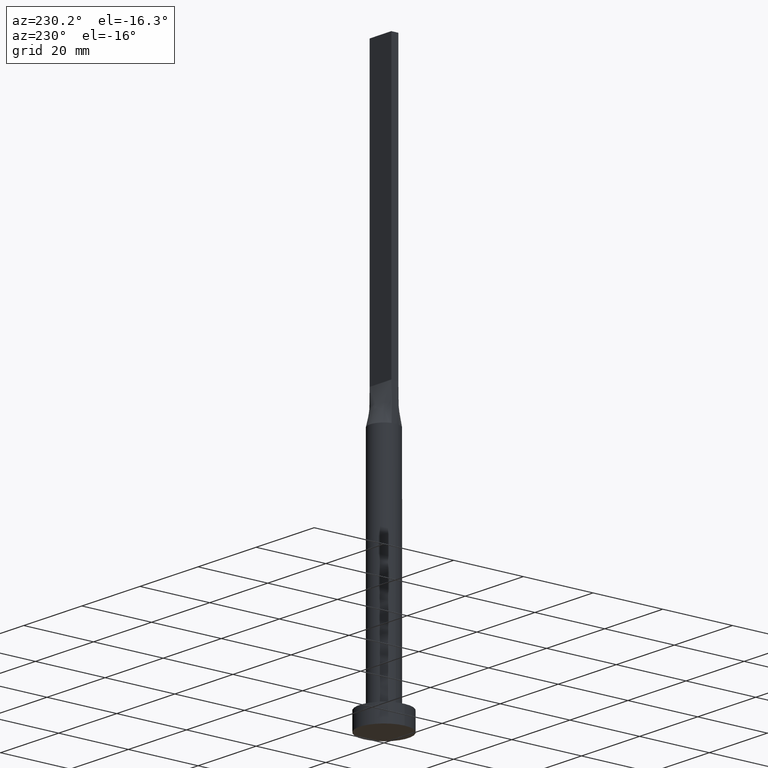
[diagram: clean part render]
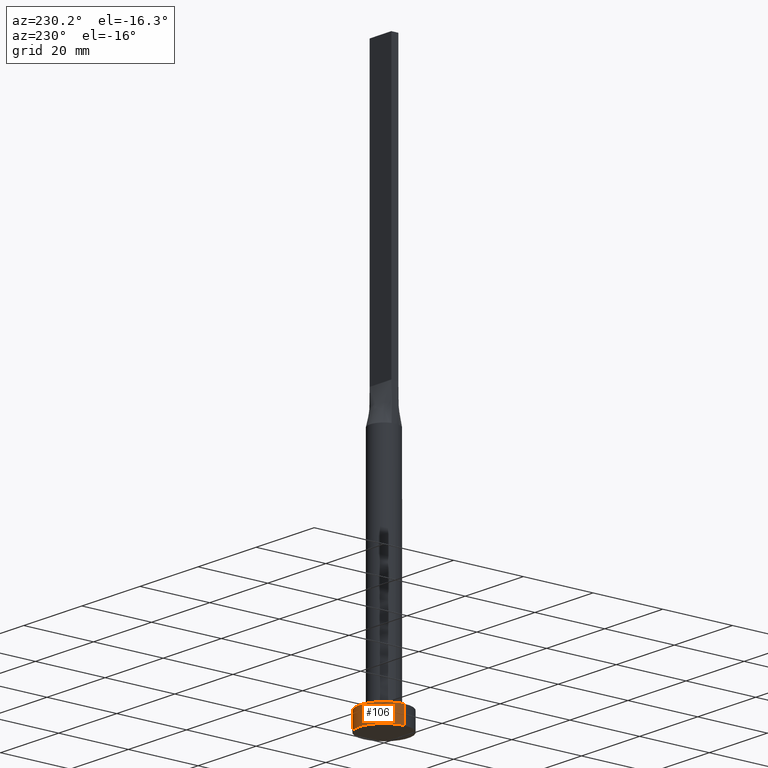
[diagram: same view with one face highlighted and labeled with its STEP entity id]
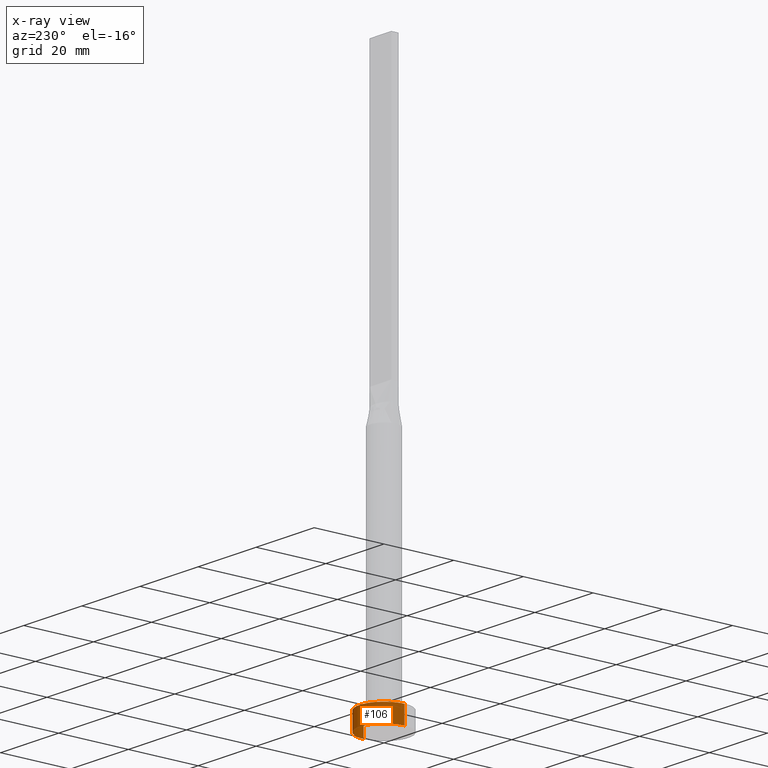
[diagram: x-ray of the same camera — body ghosted, the highlighted face saturated]
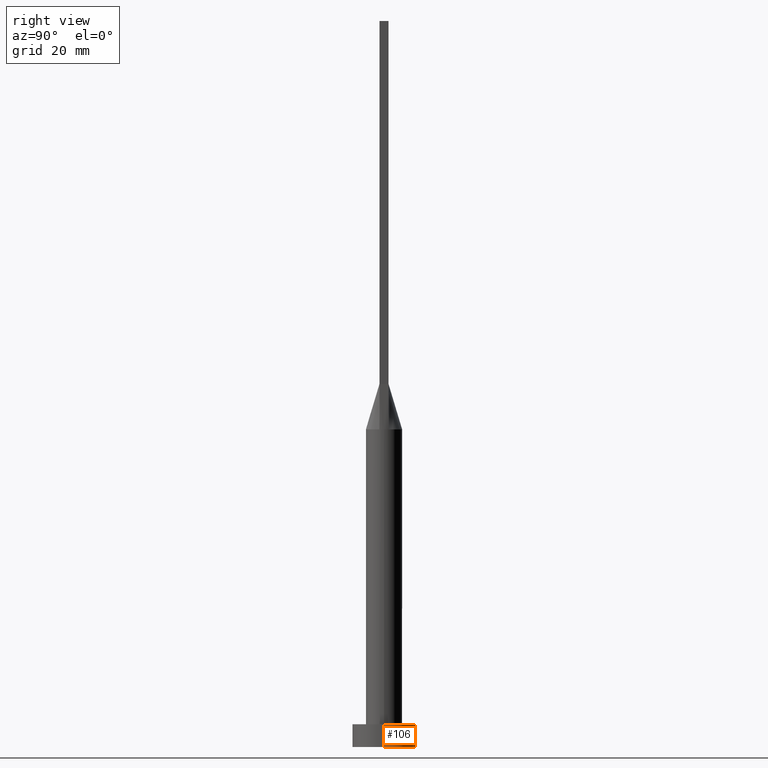
[diagram: same view with one face highlighted and labeled with its STEP entity id]
A machine part, auxiliary view. The second image highlights one B-rep face of the part: STEP entity #106.
The next image is the same camera in x-ray: the body ghosted, the highlighted face saturated — about 0% of this face is hidden behind the body in this view.
A second angle (right view) of the same face is appended — the face is thin or edge-on in the first view.
In plain terms, the highlighted cylindrical surface (edge-blend (fillet) strip) has radius 7 mm, axis along (-0, -0, -1).
Its self-contained STEP definition (entity closure, byte-faithful):
#5 = ORIENTED_EDGE ( 'NONE', *, *, #581, .F. ) ;
#23 = DIRECTION ( 'NONE',  ( 1.000000000000000000, 0.000000000000000000, 0.000000000000000000 ) ) ;
#33 = DIRECTION ( 'NONE',  ( -1.000000000000000000, 0.000000000000000000, 0.000000000000000000 ) ) ;
#59 = DIRECTION ( 'NONE',  ( -0.000000000000000000, -0.000000000000000000, -1.000000000000000000 ) ) ;
#63 = CARTESIAN_POINT ( 'NONE',  ( 0.000000000000000000, 0.000000000000000000, 5.000000000000000000 ) ) ;
#89 = VERTEX_POINT ( 'NONE', #365 ) ;
#94 = VERTEX_POINT ( 'NONE', #195 ) ;
#106 = ADVANCED_FACE ( 'NONE', ( #532 ), #131, .T. ) ;
#110 = DIRECTION ( 'NONE',  ( 0.000000000000000000, 0.000000000000000000, 1.000000000000000000 ) ) ;
#120 = DIRECTION ( 'NONE',  ( -0.000000000000000000, -0.000000000000000000, -1.000000000000000000 ) ) ;
#123 = CARTESIAN_POINT ( 'NONE',  ( 7.000000000000000000, 8.572527594031473190E-16, 0.000000000000000000 ) ) ;
#131 = CYLINDRICAL_SURFACE ( 'NONE', #222, 7.000000000000000000 ) ;
#178 = ORIENTED_EDGE ( 'NONE', *, *, #217, .T. ) ;
#181 = EDGE_CURVE ( 'NONE', #562, #89, #517, .T. ) ;
#184 = CIRCLE ( 'NONE', #518, 7.000000000000000000 ) ;
#191 = VECTOR ( 'NONE', #441, 1000.000000000000000 ) ;
#194 = VECTOR ( 'NONE', #59, 1000.000000000000000 ) ;
#195 = CARTESIAN_POINT ( 'NONE',  ( 7.000000000000000000, 8.572527594031473190E-16, 5.000000000000000000 ) ) ;
#217 = EDGE_CURVE ( 'NONE', #539, #89, #415, .T. ) ;
#222 = AXIS2_PLACEMENT_3D ( 'NONE', #63, #120, #33 ) ;
#281 = DIRECTION ( 'NONE',  ( 1.000000000000000000, 0.000000000000000000, 0.000000000000000000 ) ) ;
#296 = CARTESIAN_POINT ( 'NONE',  ( -7.000000000000000000, 0.000000000000000000, 5.000000000000000000 ) ) ;
#300 = DIRECTION ( 'NONE',  ( 0.000000000000000000, 0.000000000000000000, 1.000000000000000000 ) ) ;
#330 = CARTESIAN_POINT ( 'NONE',  ( 0.000000000000000000, 0.000000000000000000, 0.000000000000000000 ) ) ;
#337 = CARTESIAN_POINT ( 'NONE',  ( 7.000000000000000000, 8.572527594031473190E-16, 5.000000000000000000 ) ) ;
#365 = CARTESIAN_POINT ( 'NONE',  ( -7.000000000000000000, 0.000000000000000000, 0.000000000000000000 ) ) ;
#384 = AXIS2_PLACEMENT_3D ( 'NONE', #330, #110, #281 ) ;
#388 = ORIENTED_EDGE ( 'NONE', *, *, #181, .F. ) ;
#415 = CIRCLE ( 'NONE', #384, 7.000000000000000000 ) ;
#441 = DIRECTION ( 'NONE',  ( -0.000000000000000000, -0.000000000000000000, -1.000000000000000000 ) ) ;
#442 = LINE ( 'NONE', #337, #191 ) ;
#444 = EDGE_LOOP ( 'NONE', ( #5, #574, #178, #388 ) ) ;
#472 = CARTESIAN_POINT ( 'NONE',  ( -7.000000000000000000, 0.000000000000000000, 5.000000000000000000 ) ) ;
#517 = LINE ( 'NONE', #472, #194 ) ;
#518 = AXIS2_PLACEMENT_3D ( 'NONE', #528, #300, #23 ) ;
#528 = CARTESIAN_POINT ( 'NONE',  ( 0.000000000000000000, 0.000000000000000000, 5.000000000000000000 ) ) ;
#529 = EDGE_CURVE ( 'NONE', #94, #539, #442, .T. ) ;
#532 = FACE_OUTER_BOUND ( 'NONE', #444, .T. ) ;
#539 = VERTEX_POINT ( 'NONE', #123 ) ;
#562 = VERTEX_POINT ( 'NONE', #296 ) ;
#574 = ORIENTED_EDGE ( 'NONE', *, *, #529, .T. ) ;
#581 = EDGE_CURVE ( 'NONE', #94, #562, #184, .T. ) ;